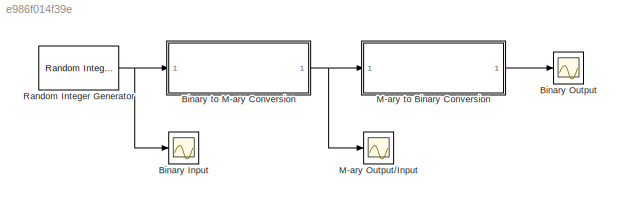
MODEL slx_e986f014f39e
KIND model
BLOCK [Scope] Binary Input
  DataFormat = StructureWithTime
  Floating = off
  NumInputPorts = 1
  Ports = [1]
  SampleTime = 0
  SaveName = ScopeData1
  ShowLegends = off
  YMax = 2
  YMin = -1
BLOCK [Scope] Binary Output
  Floating = off
  NumInputPorts = 1
  Ports = [1]
  SaveName = ScopeData2
  ShowLegends = off
  YMax = 2
  YMin = -1
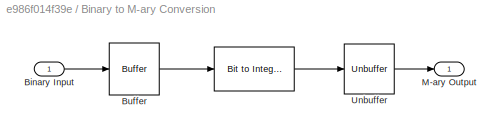
BLOCK [SubSystem] Binary to M-ary Conversion
  Ports = [1, 1]
  RequestExecContextInheritance = off
BLOCK [Reference] Binary to M-ary Conversion/   REF=commutil2/Bit to Integer
Converter
  Ports = [1, 1]
  SourceBlock = commutil2/Bit to Integer\nConverter
  SourceType = Bit to Integer Converter
  bitOrder = MSB first
  nbits = 3
  outDtype = Inherit via internal rule
  outDtypeSigned = Inherit via internal rule
  signedOutputValues = Unsigned
BLOCK [Inport] Binary to M-ary Conversion/Binary Input
  IconDisplay = Port number
BLOCK [Buffer] Binary to M-ary Conversion/Buffer
  N = 3
  TreatMby1Signals = One channel
BLOCK [Outport] Binary to M-ary Conversion/M-ary Output 
  IconDisplay = Port number
BLOCK [Unbuffer] Binary to M-ary Conversion/Unbuffer
  Ports = [1, 1]
  SampleBasedProcessing = Same as frame based
BLOCK [Scope] M-ary Output//Input
  Floating = off
  NumInputPorts = 1
  Ports = [1]
  ShowLegends = off
  YMax = 8
  YMin = -1
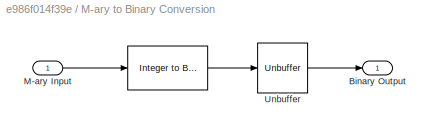
BLOCK [SubSystem] M-ary to Binary Conversion
  Ports = [1, 1]
  RequestExecContextInheritance = off
BLOCK [Reference] M-ary to Binary Conversion/   REF=commutil2/Integer to Bit
Converter
  Ports = [1, 1]
  SourceBlock = commutil2/Integer to Bit\nConverter
  SourceType = Integer to Bit Converter
  bitOrder = MSB first
  nbits = 3
  outDtype = Inherit via internal rule
  signedInputValues = Unsigned
BLOCK [Outport] M-ary to Binary Conversion/Binary Output
  IconDisplay = Port number
BLOCK [Inport] M-ary to Binary Conversion/M-ary Input
  IconDisplay = Port number
BLOCK [Unbuffer] M-ary to Binary Conversion/Unbuffer
  Ports = [1, 1]
  SampleBasedProcessing = Same as frame based
BLOCK [Reference] Random Integer Generator  REF=commrandsrc2/Random Integer
Generator
  Ports = [0, 1]
  SourceBlock = commrandsrc2/Random Integer\nGenerator
  SourceType = Random Integer Generator
  Ts = 1e-3
  frameBased = off
  mul = 2
  orient = off
  outDataType = double
  sampPerFrame = 1
  seed = 37
LINE Binary to M-ary Conversion/ :1 -> Binary to M-ary Conversion/Unbuffer:1
LINE Binary to M-ary Conversion/Binary Input:1 -> Binary to M-ary Conversion/Buffer:1
LINE Binary to M-ary Conversion/Buffer:1 -> Binary to M-ary Conversion/ :1
LINE Binary to M-ary Conversion/Unbuffer:1 -> Binary to M-ary Conversion/M-ary Output :1
NET Binary to M-ary Conversion:1 -> M-ary Output//Input:1, M-ary to Binary Conversion:1
LINE M-ary to Binary Conversion/ :1 -> M-ary to Binary Conversion/Unbuffer:1
LINE M-ary to Binary Conversion/M-ary Input:1 -> M-ary to Binary Conversion/ :1
LINE M-ary to Binary Conversion/Unbuffer:1 -> M-ary to Binary Conversion/Binary Output:1
LINE M-ary to Binary Conversion:1 -> Binary Output:1
NET Random Integer Generator:1 -> Binary Input:1, Binary to M-ary Conversion:1
note: NET lines group one-source signal fan-out (src -> all destinations, sorted); 1:1 wires keep LINE
